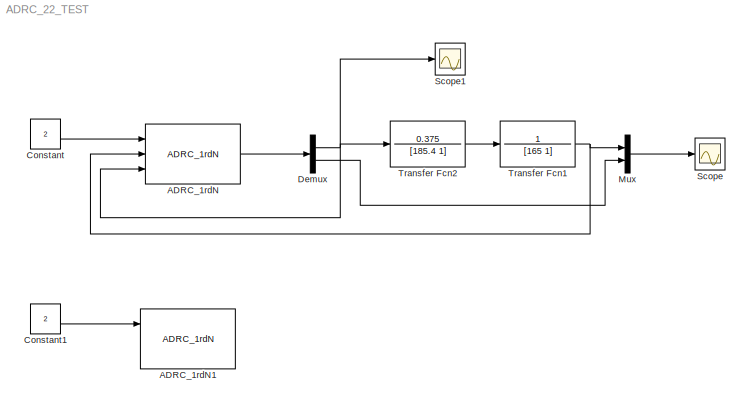
MODEL ADRC_22_TEST
KIND model
BLOCK [Reference] ADRC_1rdN  REF=ADRC/ADRC/ADRC_1rd/ADRC_1rdN
  B01 = 20
  B02 = 100
  FunctionWithSeparateData = off
  GeneratePreprocessorConditionals = off
  Ports = [3, 1]
  RT = 300
  RTWMemSecDataConstants = Inherit from model
  RTWMemSecDataInternal = Inherit from model
  RTWMemSecDataParameters = Inherit from model
  RTWMemSecFuncExecute = Inherit from model
  RTWMemSecFuncInitTerm = Inherit from model
  SID = 31
  ShowPortLabels = FromPortIcon
  SourceBlock = ADRC/ADRC/ADRC_1rd/ADRC_1rdN
  SystemSampleTime = -1
  h = 0.05
  r = 0.01
BLOCK [Reference] ADRC_1rdN1  REF=ADRC/ADRC/ADRC_1rd/ADRC_1rdN
  B01 = 20
  B02 = 100
  FunctionWithSeparateData = off
  GeneratePreprocessorConditionals = off
  Ports = [3, 1]
  RT = 300
  RTWMemSecDataConstants = Inherit from model
  RTWMemSecDataInternal = Inherit from model
  RTWMemSecDataParameters = Inherit from model
  RTWMemSecFuncExecute = Inherit from model
  RTWMemSecFuncInitTerm = Inherit from model
  SID = 49
  ShowPortLabels = FromPortIcon
  SourceBlock = ADRC/ADRC/ADRC_1rd/ADRC_1rdN
  SystemSampleTime = -1
  h = 0.05
  r = 0.01
BLOCK [Constant] Constant
  SID = 3
  Value = 2
BLOCK [Constant] Constant1
  SID = 50
  Value = 2
BLOCK [Demux] Demux
  DisplayOption = bar
  Outputs = 2
  Ports = [1, 2]
  SID = 47
BLOCK [Mux] Mux
  DisplayOption = bar
  Inputs = 2
  Ports = [2, 1]
  SID = 48
BLOCK [Scope] Scope
  DataFormat = Array
  Floating = off
  LimitDataPoints = off
  NumInputPorts = 1
  Ports = [1]
  SID = 4
  SampleTime = 0
  TimeRange = 200
  YMax = 11.5
  YMin = 3
BLOCK [Scope] Scope1
  DataFormat = Array
  Floating = off
  NumInputPorts = 1
  Ports = [1]
  SID = 5
  SampleTime = 0
  SaveName = ScopeData1
  SaveToWorkspace = on
  TimeRange = 50
  YMax = 250
  YMin = 0
BLOCK [TransferFcn] Transfer Fcn1
  Denominator = [165 1]
  Numerator = 1
  SID = 22
BLOCK [TransferFcn] Transfer Fcn2
  Denominator = [185.4 1]
  Numerator = 0.375
  SID = 46
LINE ADRC_1rdN:1 -> Demux:1
LINE Constant1:1 -> ADRC_1rdN1:1
LINE Constant:1 -> ADRC_1rdN:1
NET Demux:1 -> ADRC_1rdN:3, Scope1:1, Transfer Fcn2:1
LINE Demux:2 -> Mux:2
LINE Mux:1 -> Scope:1
NET Transfer Fcn1:1 -> ADRC_1rdN:2, Mux:1
LINE Transfer Fcn2:1 -> Transfer Fcn1:1
note: NET lines group one-source signal fan-out (src -> all destinations, sorted); 1:1 wires keep LINE
